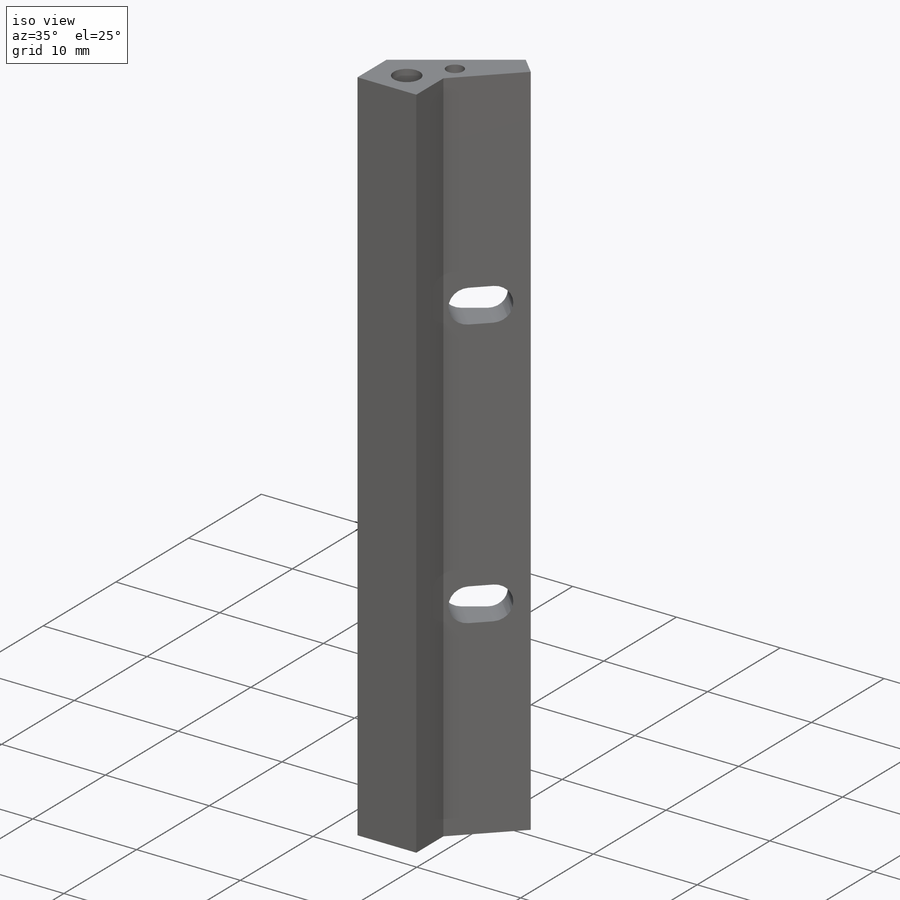
[diagram: iso view]
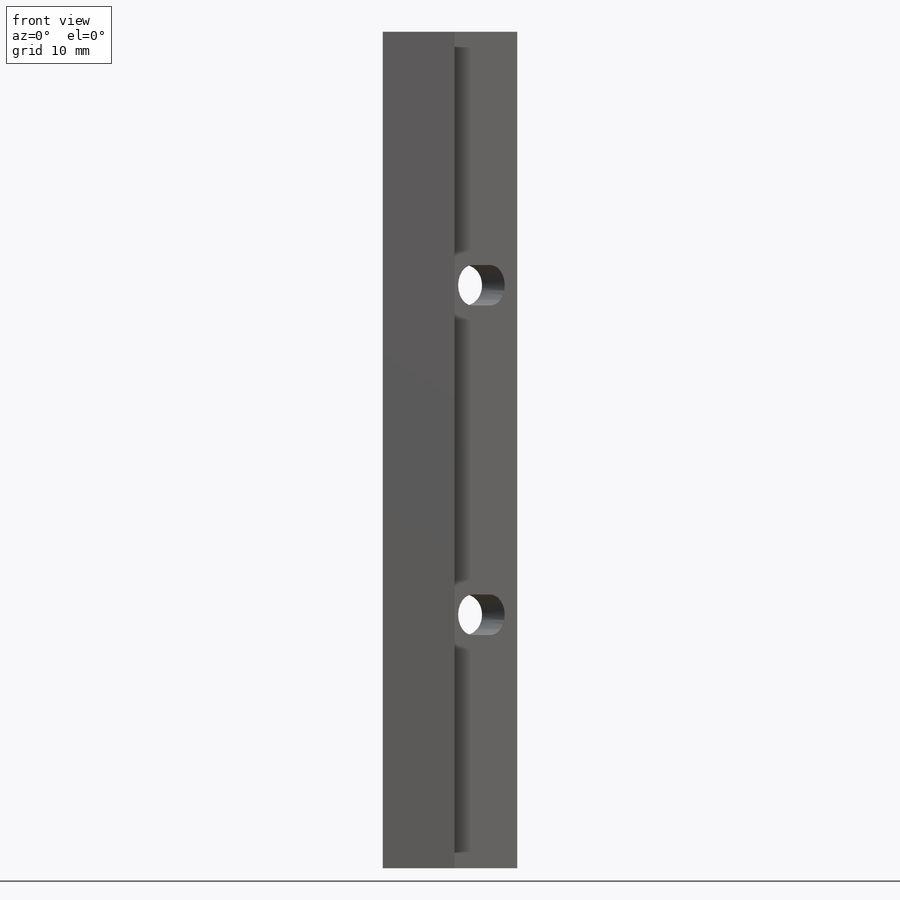
[diagram: front view]
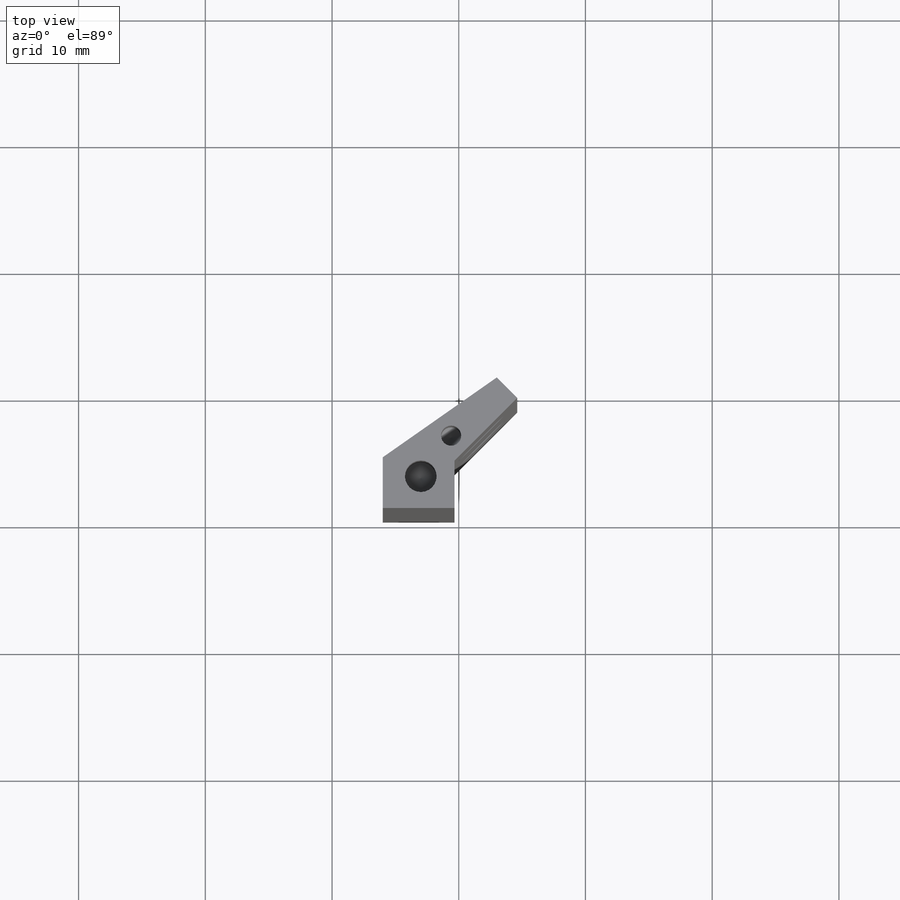
[diagram: top view]
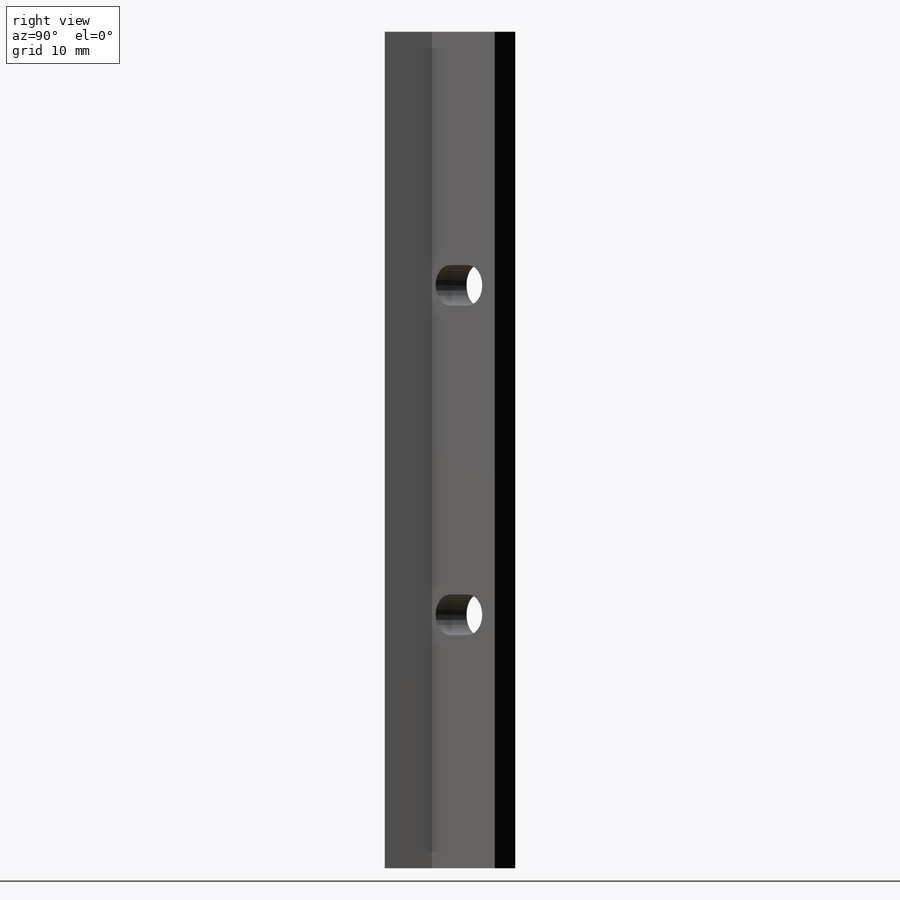
[diagram: right view]
SOLIDWORKS PART (.sldprt)
format: sldprt  version: not decoded by parser v0  size: 255,488 bytes
history: native  units: mm
features: sketch x11, hole x4, cut_extrude x2, material x1, plane x1, extrude x1 (+13 scaffold rows collapsed)
feature tree (33):
  scaffold x13  (default folders/planes/origin — collapsed)
  material  "Material <not specified>"
  plane  "Plane1"  Offset=66mm
  sketch  "Sketch1"
  extrude  "Boss-Extrude1"  Depth=66mm
  sketch  "Sketch2"
  cut_extrude  "Cut-Extrude1"  Depth=3.452947mm
  sketch  "Sketch3"
  cut_extrude  "Cut-Extrude2"  Depth=3.452947mm
  hole  "Ø2.5 (2.5) Diameter Hole1"  Diameter=2.5mm Depth=8mm
  sketch  "Sketch5"
  sketch  "Sketch4"  dims[hole-wizard template sketch: 50 standard entries collapsed; hole parameters above]
  hole  "Tap Drill for M2x0.4 Tap1"  Diameter=1.6mm Depth=8mm
  sketch  "Sketch7"
  sketch  "Sketch6"  dims[hole-wizard template sketch: 47 standard entries collapsed; hole parameters kept: c15.Hole Depth=8.0mm c15.D3=~14.816244mm c15.Drill Angle=118.0deg]
  hole  "Ø2.5 (2.5) Diameter Hole2"  Diameter=2.5mm Depth=8mm
  sketch  "Sketch9"
  sketch  "Sketch8"  dims[hole-wizard template sketch: 50 standard entries collapsed; hole parameters above]
  hole  "Tap Drill for M2x0.4 Tap2"  Diameter=1.6mm Depth=8mm
  sketch  "Sketch11"
  sketch  "Sketch10"  dims[hole-wizard template sketch: 47 standard entries collapsed; hole parameters kept: c15.Hole Depth=8.0mm c15.D3=~14.816244mm c15.Drill Angle=118.0deg]
decode coverage: 11 of 18 modeling features carry decoded parameters
note: ~ marks probable driven/reference dimensions
summary: Diameter pulled from absorbed wizard sketch
note: suppression state not decoded; provenance and decode notes live in map.json
